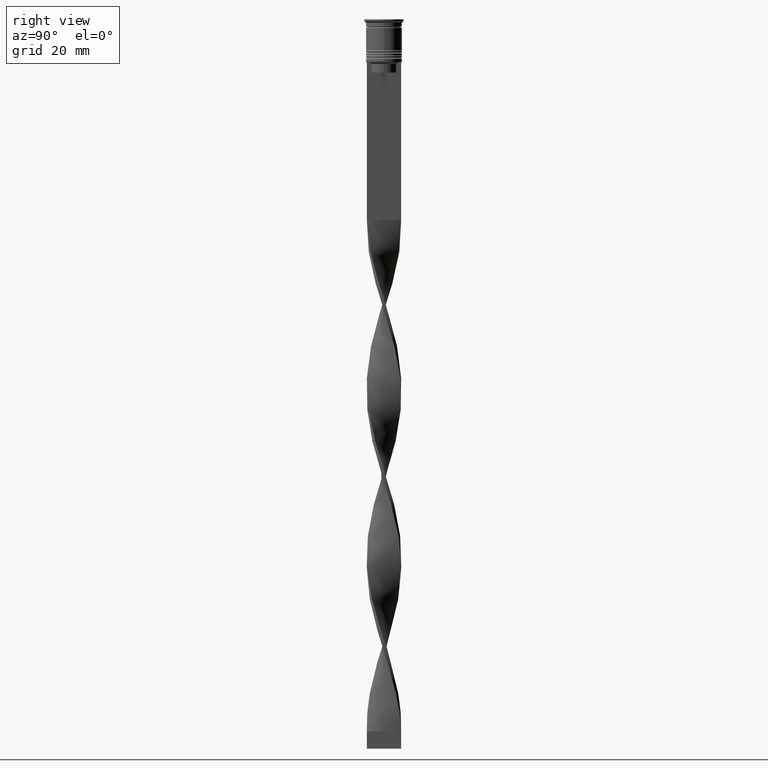
[diagram: clean part render]
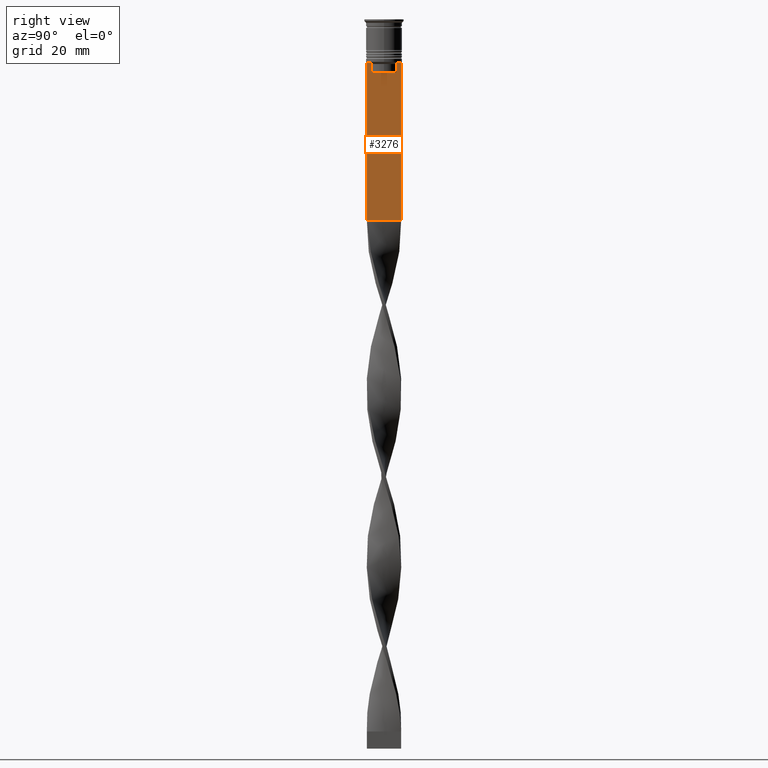
[diagram: same view with one face highlighted and labeled with its STEP entity id]
A machine part, right view. The second image highlights one B-rep face of the part: STEP entity #3276.
In plain terms, the highlighted planar face has unit normal (-1, 0, 0).
Its self-contained STEP definition (entity closure, byte-faithful):
#30 = CARTESIAN_POINT ( 'NONE',  ( 0.5000000000000000000, 3.615591237958188042, -13.00000000000000178 ) ) ;
#76 = ORIENTED_EDGE ( 'NONE', *, *, #1132, .T. ) ;
#116 = CARTESIAN_POINT ( 'NONE',  ( 0.5000000000000000000, -3.615591237958188042, -13.00000000000000178 ) ) ;
#154 = EDGE_CURVE ( 'NONE', #2605, #1409, #2337, .T. ) ;
#349 = LINE ( 'NONE', #2933, #1369 ) ;
#470 = CARTESIAN_POINT ( 'NONE',  ( 0.5000000000000000000, -3.615591237958188042, 0.000000000000000000 ) ) ;
#474 = CARTESIAN_POINT ( 'NONE',  ( 0.5000000000000000000, -4.119769411022908834, -12.50000000000000000 ) ) ;
#489 = DIRECTION ( 'NONE',  ( 0.000000000000000000, 0.000000000000000000, 1.000000000000000000 ) ) ;
#536 = VERTEX_POINT ( 'NONE', #1761 ) ;
#554 = EDGE_LOOP ( 'NONE', ( #1872, #2336, #2393, #76, #1891, #1701, #3171, #1826, #1127, #3209 ) ) ;
#636 = VERTEX_POINT ( 'NONE', #3668 ) ;
#758 = VERTEX_POINT ( 'NONE', #2075 ) ;
#760 = CARTESIAN_POINT ( 'NONE',  ( 0.5000000000000000000, -3.951794168112527927, -12.66675163073525923 ) ) ;
#790 = CARTESIAN_POINT ( 'NONE',  ( 0.5000000000000000000, 3.615591237958188042, -13.00000000000000178 ) ) ;
#979 = CARTESIAN_POINT ( 'NONE',  ( 0.5000000000000000000, 3.650000000000003464, -15.50000000000000000 ) ) ;
#1027 = DIRECTION ( 'NONE',  ( 0.000000000000000000, 0.000000000000000000, -1.000000000000000000 ) ) ;
#1031 = CARTESIAN_POINT ( 'NONE',  ( 0.5000000000000000000, -3.615591237958188042, -13.00000000000000178 ) ) ;
#1085 = CARTESIAN_POINT ( 'NONE',  ( 0.5000000000000000000, -4.999999999999999112, -2.450124378879110054 ) ) ;
#1127 = ORIENTED_EDGE ( 'NONE', *, *, #2301, .T. ) ;
#1132 = EDGE_CURVE ( 'NONE', #1150, #536, #2431, .T. ) ;
#1150 = VERTEX_POINT ( 'NONE', #1608 ) ;
#1248 = VECTOR ( 'NONE', #2139, 1000.000000000000000 ) ;
#1250 = DIRECTION ( 'NONE',  ( 0.000000000000000000, 0.000000000000000000, -1.000000000000000000 ) ) ;
#1281 = CARTESIAN_POINT ( 'NONE',  ( 0.5000000000000000000, 4.119769411022908834, -12.50000000000000000 ) ) ;
#1313 = VECTOR ( 'NONE', #1027, 1000.000000000000000 ) ;
#1369 = VECTOR ( 'NONE', #1468, 1000.000000000000000 ) ;
#1390 = CARTESIAN_POINT ( 'NONE',  ( 0.5000000000000000000, 5.000000000000000888, -2.450124378879110054 ) ) ;
#1407 = LINE ( 'NONE', #1390, #2168 ) ;
#1409 = VERTEX_POINT ( 'NONE', #30 ) ;
#1468 = DIRECTION ( 'NONE',  ( 0.000000000000000000, -1.000000000000000000, 0.000000000000000000 ) ) ;
#1520 = CARTESIAN_POINT ( 'NONE',  ( 0.5000000000000000000, -4.999999999999999112, -12.50000000000000000 ) ) ;
#1608 = CARTESIAN_POINT ( 'NONE',  ( 0.5000000000000000000, 3.615591237958188486, -15.50000000000000000 ) ) ;
#1617 = EDGE_CURVE ( 'NONE', #1409, #1150, #3309, .T. ) ;
#1631 = DIRECTION ( 'NONE',  ( -0.000000000000000000, -0.000000000000000000, 1.000000000000000000 ) ) ;
#1701 = ORIENTED_EDGE ( 'NONE', *, *, #2585, .T. ) ;
#1726 = VERTEX_POINT ( 'NONE', #2676 ) ;
#1730 = FACE_OUTER_BOUND ( 'NONE', #554, .T. ) ;
#1761 = CARTESIAN_POINT ( 'NONE',  ( 0.5000000000000000000, -3.615591237958188486, -15.50000000000000000 ) ) ;
#1807 = DIRECTION ( 'NONE',  ( 0.000000000000000000, -1.000000000000000000, 0.000000000000000000 ) ) ;
#1826 = ORIENTED_EDGE ( 'NONE', *, *, #3079, .T. ) ;
#1832 = DIRECTION ( 'NONE',  ( 0.000000000000000000, 1.000000000000000000, 0.000000000000000000 ) ) ;
#1867 = VECTOR ( 'NONE', #1807, 1000.000000000000000 ) ;
#1872 = ORIENTED_EDGE ( 'NONE', *, *, #2232, .T. ) ;
#1891 = ORIENTED_EDGE ( 'NONE', *, *, #3200, .T. ) ;
#1909 = VECTOR ( 'NONE', #1250, 1000.000000000000000 ) ;
#1917 = AXIS2_PLACEMENT_3D ( 'NONE', #1085, #2247, #489 ) ;
#1983 = VERTEX_POINT ( 'NONE', #2815 ) ;
#1998 = PLANE ( 'NONE',  #1917 ) ;
#2001 = CARTESIAN_POINT ( 'NONE',  ( 0.5000000000000000000, 5.000000000000000888, -58.50000000000000000 ) ) ;
#2075 = CARTESIAN_POINT ( 'NONE',  ( 0.5000000000000000000, -4.119769411022908834, -12.50000000000000000 ) ) ;
#2139 = DIRECTION ( 'NONE',  ( 0.000000000000000000, -1.000000000000000000, 0.000000000000000000 ) ) ;
#2168 = VECTOR ( 'NONE', #3445, 1000.000000000000000 ) ;
#2232 = EDGE_CURVE ( 'NONE', #1726, #2605, #349, .T. ) ;
#2235 = CARTESIAN_POINT ( 'NONE',  ( 0.5000000000000000000, -3.783746406711539390, -12.83343003979123509 ) ) ;
#2245 = CARTESIAN_POINT ( 'NONE',  ( 0.5000000000000000000, 4.119769411022908834, -12.50000000000000000 ) ) ;
#2247 = DIRECTION ( 'NONE',  ( -1.000000000000000000, 0.000000000000000000, 0.000000000000000000 ) ) ;
#2288 = VECTOR ( 'NONE', #1832, 1000.000000000000000 ) ;
#2301 = EDGE_CURVE ( 'NONE', #636, #2701, #3304, .T. ) ;
#2336 = ORIENTED_EDGE ( 'NONE', *, *, #154, .T. ) ;
#2337 = B_SPLINE_CURVE_WITH_KNOTS ( 'NONE', 3,
 ( #2245, #3422, #2458, #790 ),
 .UNSPECIFIED., .F., .F.,
 ( 4, 4 ),
 ( 0.007067514914986626831, 0.007777582239375525376 ),
 .UNSPECIFIED. ) ;
#2354 = CARTESIAN_POINT ( 'NONE',  ( 0.5000000000000000000, -4.999999999999999112, -58.50000000000000000 ) ) ;
#2393 = ORIENTED_EDGE ( 'NONE', *, *, #1617, .T. ) ;
#2431 = LINE ( 'NONE', #979, #1248 ) ;
#2458 = CARTESIAN_POINT ( 'NONE',  ( 0.5000000000000000000, 3.783746449387932476, -12.83342999751715752 ) ) ;
#2505 = VERTEX_POINT ( 'NONE', #1031 ) ;
#2561 = B_SPLINE_CURVE_WITH_KNOTS ( 'NONE', 3,
 ( #116, #2235, #760, #474 ),
 .UNSPECIFIED., .F., .F.,
 ( 4, 4 ),
 ( 0.01745179617248910492, 0.01816207215777258452 ),
 .UNSPECIFIED. ) ;
#2585 = EDGE_CURVE ( 'NONE', #2505, #758, #2561, .T. ) ;
#2603 = VECTOR ( 'NONE', #1631, 1000.000000000000000 ) ;
#2605 = VERTEX_POINT ( 'NONE', #1281 ) ;
#2676 = CARTESIAN_POINT ( 'NONE',  ( 0.5000000000000000000, 5.000000000000000888, -12.50000000000000000 ) ) ;
#2701 = VERTEX_POINT ( 'NONE', #2001 ) ;
#2709 = EDGE_CURVE ( 'NONE', #1726, #2701, #1407, .T. ) ;
#2815 = CARTESIAN_POINT ( 'NONE',  ( 0.5000000000000000000, -4.999999999999999112, -12.50000000000000000 ) ) ;
#2933 = CARTESIAN_POINT ( 'NONE',  ( 0.5000000000000000000, -4.999999999999999112, -12.50000000000000000 ) ) ;
#2941 = EDGE_CURVE ( 'NONE', #758, #1983, #2967, .T. ) ;
#2967 = LINE ( 'NONE', #1520, #1867 ) ;
#2980 = CARTESIAN_POINT ( 'NONE',  ( 0.5000000000000000000, 3.615591237958188042, 0.000000000000000000 ) ) ;
#3079 = EDGE_CURVE ( 'NONE', #1983, #636, #3354, .T. ) ;
#3097 = LINE ( 'NONE', #470, #2603 ) ;
#3171 = ORIENTED_EDGE ( 'NONE', *, *, #2941, .T. ) ;
#3200 = EDGE_CURVE ( 'NONE', #536, #2505, #3097, .T. ) ;
#3209 = ORIENTED_EDGE ( 'NONE', *, *, #2709, .F. ) ;
#3276 = ADVANCED_FACE ( 'NONE', ( #1730 ), #1998, .F. ) ;
#3304 = LINE ( 'NONE', #2354, #2288 ) ;
#3309 = LINE ( 'NONE', #2980, #1909 ) ;
#3354 = LINE ( 'NONE', #3371, #1313 ) ;
#3371 = CARTESIAN_POINT ( 'NONE',  ( 0.5000000000000000000, -4.999999999999999112, -2.450124378879110054 ) ) ;
#3422 = CARTESIAN_POINT ( 'NONE',  ( 0.5000000000000000000, 3.951794205566887985, -12.66675159355373737 ) ) ;
#3445 = DIRECTION ( 'NONE',  ( 0.000000000000000000, 0.000000000000000000, -1.000000000000000000 ) ) ;
#3668 = CARTESIAN_POINT ( 'NONE',  ( 0.5000000000000000000, -4.999999999999999112, -58.50000000000000000 ) ) ;